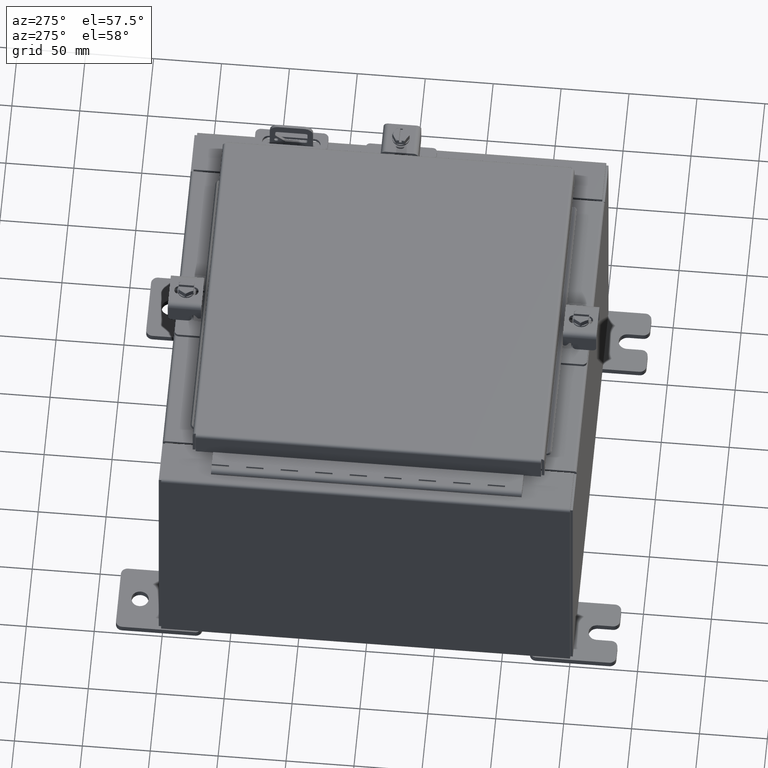
[diagram: clean part render]
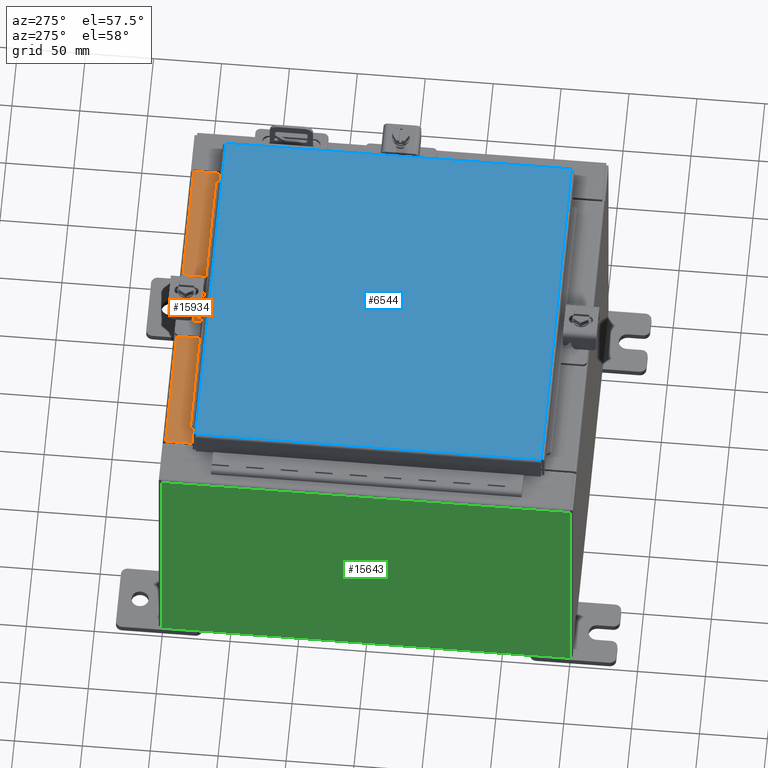
[diagram: same view with three faces highlighted in distinct colors, each labeled with its STEP entity id]
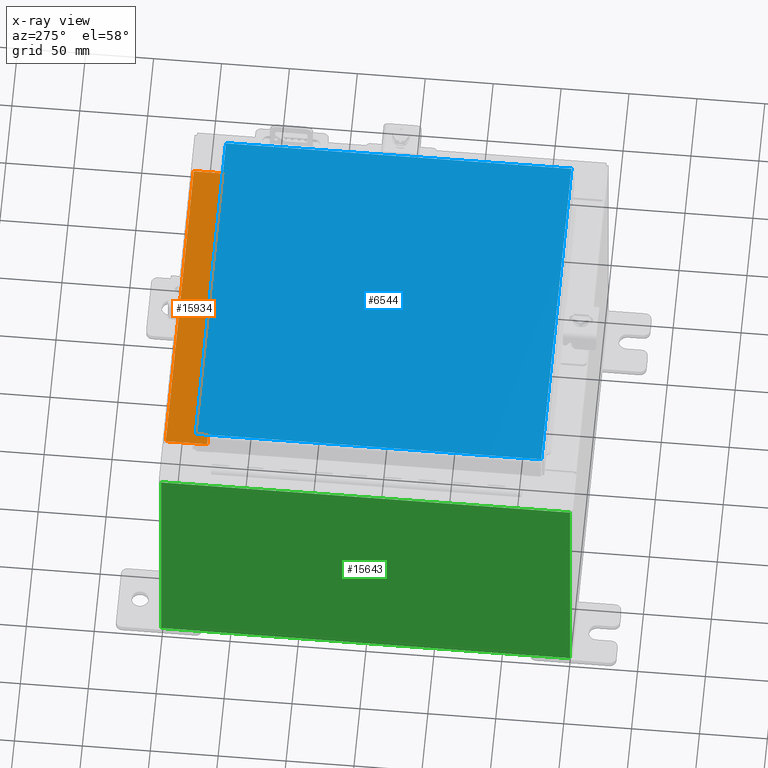
[diagram: x-ray of the same camera — body ghosted, the three highlighted faces saturated]
A machine part, auxiliary view with three faces highlighted in distinct colors.
The next image is the same camera in x-ray (body ghosted, the three faces saturated) — at least one of them is partly hidden behind the body in this view.
Their STEP definitions:

[orange] entity #15934 — the highlighted planar face has unit normal (0, 0, 1).
#104 = VERTEX_POINT ( 'NONE', #5381 ) ;
#1086 = DIRECTION ( 'NONE',  ( -0.0000000000000000000, -1.000000000000000000, 3.566381192773190000E-015 ) ) ;
#1254 = EDGE_CURVE ( 'NONE', #10132, #15245, #12197, .T. ) ;
#2118 = EDGE_CURVE ( 'NONE', #10132, #104, #6458, .T. ) ;
#2187 = ORIENTED_EDGE ( 'NONE', *, *, #9034, .F. ) ;
#2683 = CARTESIAN_POINT ( 'NONE',  ( -4.637199999999998200, -0.08770000000000026400, 3.999999999999999600 ) ) ;
#4296 = ORIENTED_EDGE ( 'NONE', *, *, #2118, .F. ) ;
#5381 = CARTESIAN_POINT ( 'NONE',  ( 4.637200000000002700, -1.287300000000000300, 4.000000000000003600 ) ) ;
#5639 = CARTESIAN_POINT ( 'NONE',  ( 4.637200000000002700, -0.08770000000000026400, 3.999999999999999600 ) ) ;
#6458 = LINE ( 'NONE', #16296, #21252 ) ;
#7235 = DIRECTION ( 'NONE',  ( 0.0000000000000000000, -1.000000000000000000, 3.566381192773190000E-015 ) ) ;
#9034 = EDGE_CURVE ( 'NONE', #16272, #15245, #20146, .T. ) ;
#10097 = ORIENTED_EDGE ( 'NONE', *, *, #1254, .T. ) ;
#10132 = VERTEX_POINT ( 'NONE', #5639 ) ;
#11109 = CARTESIAN_POINT ( 'NONE',  ( -4.637199999999998200, -0.07470000000000015500, 3.999999999999999600 ) ) ;
#11513 = CARTESIAN_POINT ( 'NONE',  ( -4.637199999999998200, -1.287299999999999200, 4.000000000000003600 ) ) ;
#12197 = LINE ( 'NONE', #22589, #18146 ) ;
#14817 = VECTOR ( 'NONE', #15371, 39.37007874015748100 ) ;
#15245 = VERTEX_POINT ( 'NONE', #2683 ) ;
#15371 = DIRECTION ( 'NONE',  ( -1.000000000000000000, 0.0000000000000000000, 0.0000000000000000000 ) ) ;
#15439 = EDGE_CURVE ( 'NONE', #104, #16272, #21266, .T. ) ;
#15934 = ADVANCED_FACE ( 'NONE', ( #21002 ), #16126, .T. ) ;
#16126 = PLANE ( 'NONE',  #21616 ) ;
#16272 = VERTEX_POINT ( 'NONE', #11513 ) ;
#16296 = CARTESIAN_POINT ( 'NONE',  ( 4.637200000000002700, -1.300299999999999800, 4.000000000000003600 ) ) ;
#16659 = CARTESIAN_POINT ( 'NONE',  ( 0.0000000000000000000, 1.420560956705417000E-014, 3.999999999999999600 ) ) ;
#18146 = VECTOR ( 'NONE', #19829, 39.37007874015748100 ) ;
#19829 = DIRECTION ( 'NONE',  ( -1.000000000000000000, 0.0000000000000000000, 0.0000000000000000000 ) ) ;
#20146 = LINE ( 'NONE', #11109, #21077 ) ;
#20743 = DIRECTION ( 'NONE',  ( 0.0000000000000000000, 3.566381192773190000E-015, 1.000000000000000000 ) ) ;
#21002 = FACE_OUTER_BOUND ( 'NONE', #21772, .T. ) ;
#21077 = VECTOR ( 'NONE', #22011, 39.37007874015748100 ) ;
#21252 = VECTOR ( 'NONE', #1086, 39.37007874015748100 ) ;
#21266 = LINE ( 'NONE', #22318, #14817 ) ;
#21616 = AXIS2_PLACEMENT_3D ( 'NONE', #16659, #20743, #7235 ) ;
#21772 = EDGE_LOOP ( 'NONE', ( #2187, #23212, #4296, #10097 ) ) ;
#22011 = DIRECTION ( 'NONE',  ( -0.0000000000000000000, 1.000000000000000000, -3.566381192773190000E-015 ) ) ;
#22318 = CARTESIAN_POINT ( 'NONE',  ( 4.637200000000002700, -1.287300000000000300, 4.000000000000002700 ) ) ;
#22589 = CARTESIAN_POINT ( 'NONE',  ( 0.0000000000000000000, -0.08770000000000026400, 4.000000000000000900 ) ) ;
#23212 = ORIENTED_EDGE ( 'NONE', *, *, #15439, .F. ) ;

[blue] entity #6544 — the highlighted planar face has unit normal (0, 0, -1).
#187 = EDGE_CURVE ( 'NONE', #3221, #1307, #10351, .T. ) ;
#503 = CARTESIAN_POINT ( 'NONE',  ( -4.990300000000000400, -5.006300000000000400, 0.0000000000000000000 ) ) ;
#888 = DIRECTION ( 'NONE',  ( 0.0000000000000000000, 0.0000000000000000000, -1.000000000000000000 ) ) ;
#1307 = VERTEX_POINT ( 'NONE', #5236 ) ;
#2212 = CARTESIAN_POINT ( 'NONE',  ( -4.990300000000000400, -5.006300000000000400, 0.0000000000000000000 ) ) ;
#2403 = CARTESIAN_POINT ( 'NONE',  ( 0.0000000000000000000, 0.0000000000000000000, 0.0000000000000000000 ) ) ;
#3064 = ORIENTED_EDGE ( 'NONE', *, *, #10638, .T. ) ;
#3077 = CARTESIAN_POINT ( 'NONE',  ( -4.990300000000000400, 5.006299999999998600, 0.0000000000000000000 ) ) ;
#3221 = VERTEX_POINT ( 'NONE', #2212 ) ;
#3724 = DIRECTION ( 'NONE',  ( 0.0000000000000000000, 1.000000000000000000, 0.0000000000000000000 ) ) ;
#3902 = DIRECTION ( 'NONE',  ( 0.0000000000000000000, -1.000000000000000000, 0.0000000000000000000 ) ) ;
#4014 = FACE_OUTER_BOUND ( 'NONE', #21496, .T. ) ;
#4210 = VECTOR ( 'NONE', #3902, 39.37007874015748100 ) ;
#5236 = CARTESIAN_POINT ( 'NONE',  ( 4.990299999999998600, -5.006300000000000400, 0.0000000000000000000 ) ) ;
#5509 = AXIS2_PLACEMENT_3D ( 'NONE', #2403, #888, #11697 ) ;
#6122 = ORIENTED_EDGE ( 'NONE', *, *, #187, .T. ) ;
#6141 = VECTOR ( 'NONE', #3724, 39.37007874015748100 ) ;
#6426 = VERTEX_POINT ( 'NONE', #20927 ) ;
#6544 = ADVANCED_FACE ( 'NONE', ( #4014 ), #20441, .F. ) ;
#6781 = VECTOR ( 'NONE', #12393, 39.37007874015748100 ) ;
#7036 = DIRECTION ( 'NONE',  ( 1.000000000000000000, -0.0000000000000000000, -0.0000000000000000000 ) ) ;
#7239 = VECTOR ( 'NONE', #7036, 39.37007874015748100 ) ;
#9602 = ORIENTED_EDGE ( 'NONE', *, *, #18130, .T. ) ;
#10351 = LINE ( 'NONE', #503, #7239 ) ;
#10638 = EDGE_CURVE ( 'NONE', #6426, #13836, #20641, .T. ) ;
#11345 = LINE ( 'NONE', #15542, #4210 ) ;
#11697 = DIRECTION ( 'NONE',  ( -1.000000000000000000, 0.0000000000000000000, -0.0000000000000000000 ) ) ;
#12140 = EDGE_CURVE ( 'NONE', #13836, #3221, #11345, .T. ) ;
#12393 = DIRECTION ( 'NONE',  ( -1.000000000000000000, -0.0000000000000000000, -0.0000000000000000000 ) ) ;
#13836 = VERTEX_POINT ( 'NONE', #3077 ) ;
#15542 = CARTESIAN_POINT ( 'NONE',  ( -4.990300000000000400, 5.006299999999998600, 0.0000000000000000000 ) ) ;
#16449 = CARTESIAN_POINT ( 'NONE',  ( 4.990299999999998600, -5.006300000000000400, 0.0000000000000000000 ) ) ;
#18130 = EDGE_CURVE ( 'NONE', #1307, #6426, #22881, .T. ) ;
#20441 = PLANE ( 'NONE',  #5509 ) ;
#20461 = ORIENTED_EDGE ( 'NONE', *, *, #12140, .T. ) ;
#20641 = LINE ( 'NONE', #22203, #6781 ) ;
#20927 = CARTESIAN_POINT ( 'NONE',  ( 4.990299999999998600, 5.006299999999998600, 0.0000000000000000000 ) ) ;
#21496 = EDGE_LOOP ( 'NONE', ( #6122, #9602, #3064, #20461 ) ) ;
#22203 = CARTESIAN_POINT ( 'NONE',  ( 4.990299999999998600, 5.006299999999998600, 0.0000000000000000000 ) ) ;
#22881 = LINE ( 'NONE', #16449, #6141 ) ;

[green] entity #15643 — the highlighted planar face has unit normal (1, 0, 0).
#21 = DIRECTION ( 'NONE',  ( -3.446996320220387700E-015, 1.378798528088155100E-016, 1.000000000000000000 ) ) ;
#253 = EDGE_CURVE ( 'NONE', #4937, #14384, #11173, .T. ) ;
#550 = CARTESIAN_POINT ( 'NONE',  ( -5.999999999999999100, 5.925299999999999100, -2.094985930141282000E-014 ) ) ;
#879 = CARTESIAN_POINT ( 'NONE',  ( -6.000000000000026600, -5.925299999999999100, 7.837599999999999200 ) ) ;
#1814 = DIRECTION ( 'NONE',  ( -0.0000000000000000000, 1.000000000000000000, -0.0000000000000000000 ) ) ;
#4937 = VERTEX_POINT ( 'NONE', #17131 ) ;
#5483 = LINE ( 'NONE', #9095, #8041 ) ;
#6917 = VECTOR ( 'NONE', #21, 39.37007874015748100 ) ;
#6952 = VERTEX_POINT ( 'NONE', #7530 ) ;
#7376 = DIRECTION ( 'NONE',  ( 1.000000000000000000, 0.0000000000000000000, 3.446996320220386900E-015 ) ) ;
#7530 = CARTESIAN_POINT ( 'NONE',  ( -5.999999999999999100, -5.925299999999999100, 0.01299999999999985200 ) ) ;
#8041 = VECTOR ( 'NONE', #1814, 39.37007874015748100 ) ;
#8163 = VERTEX_POINT ( 'NONE', #10201 ) ;
#8180 = CARTESIAN_POINT ( 'NONE',  ( -5.999999999999999100, 5.925299999999999100, 0.01299999999999985200 ) ) ;
#8351 = CARTESIAN_POINT ( 'NONE',  ( -5.999999999999999100, -5.925300000000001800, -2.013030490331353800E-014 ) ) ;
#8990 = EDGE_CURVE ( 'NONE', #8163, #4937, #10545, .T. ) ;
#9095 = CARTESIAN_POINT ( 'NONE',  ( -5.999999999999999100, 5.925299999999999100, 0.01299999999999985200 ) ) ;
#10201 = CARTESIAN_POINT ( 'NONE',  ( -6.000000000000026600, -5.925299999999995600, 7.837599999999999200 ) ) ;
#10520 = VECTOR ( 'NONE', #20919, 39.37007874015748100 ) ;
#10528 = LINE ( 'NONE', #8351, #6917 ) ;
#10545 = LINE ( 'NONE', #879, #10520 ) ;
#11173 = LINE ( 'NONE', #550, #11454 ) ;
#11216 = PLANE ( 'NONE',  #21858 ) ;
#11454 = VECTOR ( 'NONE', #21310, 39.37007874015748100 ) ;
#13762 = EDGE_CURVE ( 'NONE', #6952, #14384, #5483, .T. ) ;
#14384 = VERTEX_POINT ( 'NONE', #8180 ) ;
#15623 = FACE_OUTER_BOUND ( 'NONE', #18940, .T. ) ;
#15643 = ADVANCED_FACE ( 'NONE', ( #15623 ), #11216, .F. ) ;
#17131 = CARTESIAN_POINT ( 'NONE',  ( -6.000000000000026600, 5.925299999999999100, 7.837599999999999200 ) ) ;
#17557 = ORIENTED_EDGE ( 'NONE', *, *, #253, .T. ) ;
#18307 = EDGE_CURVE ( 'NONE', #6952, #8163, #10528, .T. ) ;
#18485 = ORIENTED_EDGE ( 'NONE', *, *, #13762, .F. ) ;
#18940 = EDGE_LOOP ( 'NONE', ( #22179, #17557, #18485, #21026 ) ) ;
#20713 = DIRECTION ( 'NONE',  ( 3.446996320220386900E-015, 0.0000000000000000000, -1.000000000000000000 ) ) ;
#20919 = DIRECTION ( 'NONE',  ( 0.0000000000000000000, 1.000000000000000000, 0.0000000000000000000 ) ) ;
#21026 = ORIENTED_EDGE ( 'NONE', *, *, #18307, .T. ) ;
#21125 = CARTESIAN_POINT ( 'NONE',  ( -5.999999999999999100, 0.0000000000000000000, -2.094985930141282000E-014 ) ) ;
#21310 = DIRECTION ( 'NONE',  ( 3.446996320220387700E-015, 0.0000000000000000000, -1.000000000000000000 ) ) ;
#21858 = AXIS2_PLACEMENT_3D ( 'NONE', #21125, #7376, #20713 ) ;
#22179 = ORIENTED_EDGE ( 'NONE', *, *, #8990, .T. ) ;